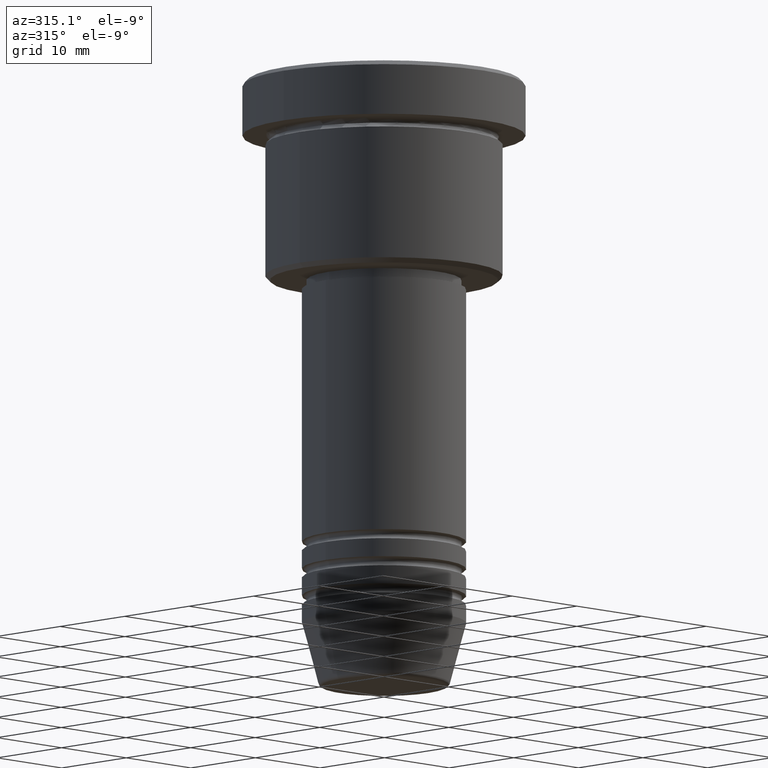
[diagram: clean part render]
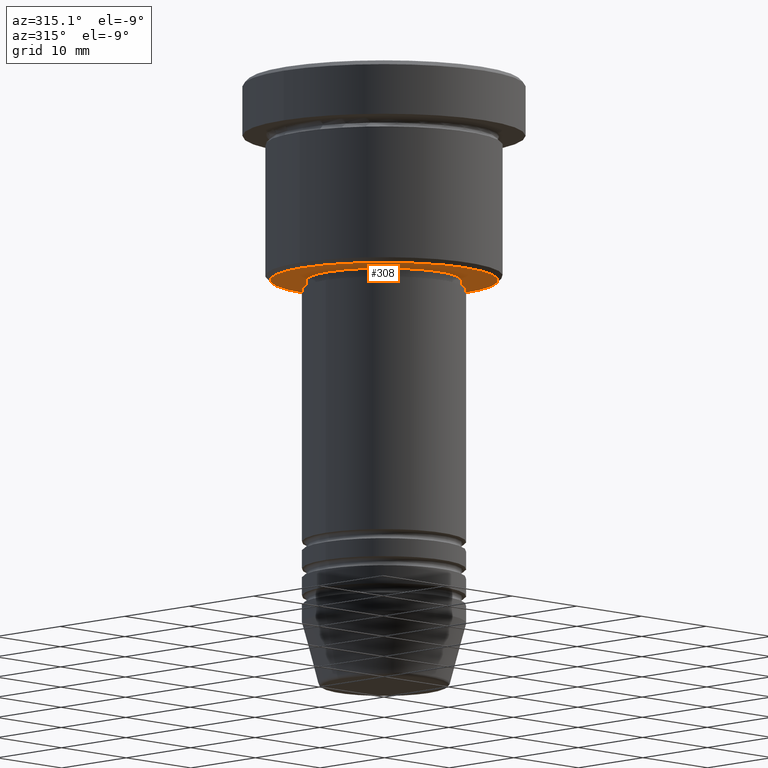
[diagram: same view with one face highlighted and labeled with its STEP entity id]
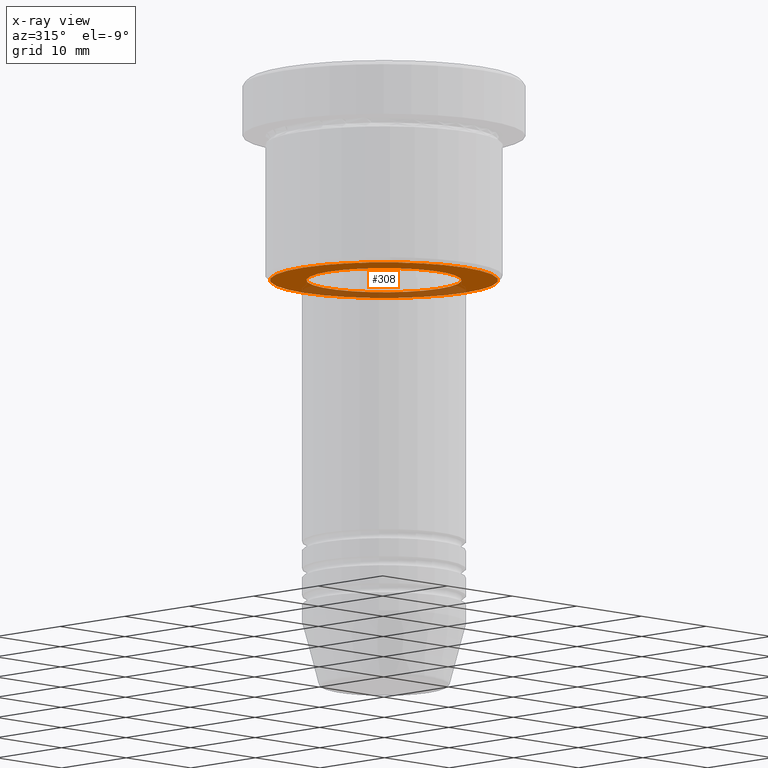
[diagram: x-ray of the same camera — body ghosted, the highlighted face saturated]
A machine part, auxiliary view. The second image highlights one B-rep face of the part: STEP entity #308.
The next image is the same camera in x-ray: the body ghosted, the highlighted face saturated — about 31% of this face is hidden behind the body in this view.
In plain terms, the highlighted planar face has unit normal (0, 0, -1).
Its self-contained STEP definition (entity closure, byte-faithful):
#19 = EDGE_CURVE ( 'NONE', #1027, #1173, #199, .T. ) ;
#20 = DIRECTION ( 'NONE',  ( 0.000000000000000000, 0.000000000000000000, -1.000000000000000000 ) ) ;
#30 = ORIENTED_EDGE ( 'NONE', *, *, #227, .T. ) ;
#33 = CIRCLE ( 'NONE', #332, 12.49999999999999112 ) ;
#81 = CARTESIAN_POINT ( 'NONE',  ( 8.499999999999998224, 0.000000000000000000, -22.00000000000000000 ) ) ;
#101 = PLANE ( 'NONE',  #795 ) ;
#105 = AXIS2_PLACEMENT_3D ( 'NONE', #606, #433, #816 ) ;
#121 = DIRECTION ( 'NONE',  ( 0.000000000000000000, 0.000000000000000000, -1.000000000000000000 ) ) ;
#128 = CIRCLE ( 'NONE', #693, 12.49999999999999112 ) ;
#177 = VERTEX_POINT ( 'NONE', #248 ) ;
#195 = CARTESIAN_POINT ( 'NONE',  ( -12.49999999999999112, 1.561424668912874519E-15, -22.00000000000000000 ) ) ;
#199 = CIRCLE ( 'NONE', #331, 8.499999999999998224 ) ;
#208 = FACE_OUTER_BOUND ( 'NONE', #1022, .T. ) ;
#227 = EDGE_CURVE ( 'NONE', #1173, #1027, #615, .T. ) ;
#247 = DIRECTION ( 'NONE',  ( 0.000000000000000000, 0.000000000000000000, -1.000000000000000000 ) ) ;
#248 = CARTESIAN_POINT ( 'NONE',  ( 12.49999999999999112, 0.000000000000000000, -22.00000000000000000 ) ) ;
#283 = ORIENTED_EDGE ( 'NONE', *, *, #19, .T. ) ;
#308 = ADVANCED_FACE ( 'NONE', ( #208, #749 ), #101, .T. ) ;
#326 = CARTESIAN_POINT ( 'NONE',  ( -8.499999999999998224, 1.040949779275249943E-15, -22.00000000000000000 ) ) ;
#331 = AXIS2_PLACEMENT_3D ( 'NONE', #677, #416, #1123 ) ;
#332 = AXIS2_PLACEMENT_3D ( 'NONE', #398, #121, #1118 ) ;
#383 = ORIENTED_EDGE ( 'NONE', *, *, #468, .T. ) ;
#398 = CARTESIAN_POINT ( 'NONE',  ( 0.000000000000000000, 0.000000000000000000, -22.00000000000000000 ) ) ;
#416 = DIRECTION ( 'NONE',  ( -0.000000000000000000, -0.000000000000000000, 1.000000000000000000 ) ) ;
#433 = DIRECTION ( 'NONE',  ( -0.000000000000000000, -0.000000000000000000, 1.000000000000000000 ) ) ;
#468 = EDGE_CURVE ( 'NONE', #177, #760, #33, .T. ) ;
#606 = CARTESIAN_POINT ( 'NONE',  ( 0.000000000000000000, 0.000000000000000000, -22.00000000000000000 ) ) ;
#615 = CIRCLE ( 'NONE', #105, 8.499999999999998224 ) ;
#661 = CARTESIAN_POINT ( 'NONE',  ( 0.000000000000000000, 13.00000000000000000, -22.00000000000000000 ) ) ;
#667 = EDGE_CURVE ( 'NONE', #760, #177, #128, .T. ) ;
#677 = CARTESIAN_POINT ( 'NONE',  ( 0.000000000000000000, 0.000000000000000000, -22.00000000000000000 ) ) ;
#693 = AXIS2_PLACEMENT_3D ( 'NONE', #889, #247, #1160 ) ;
#749 = FACE_BOUND ( 'NONE', #1007, .T. ) ;
#760 = VERTEX_POINT ( 'NONE', #195 ) ;
#795 = AXIS2_PLACEMENT_3D ( 'NONE', #661, #20, #942 ) ;
#816 = DIRECTION ( 'NONE',  ( 1.000000000000000000, 0.000000000000000000, 0.000000000000000000 ) ) ;
#889 = CARTESIAN_POINT ( 'NONE',  ( 0.000000000000000000, 0.000000000000000000, -22.00000000000000000 ) ) ;
#942 = DIRECTION ( 'NONE',  ( -1.000000000000000000, 0.000000000000000000, -0.000000000000000000 ) ) ;
#1007 = EDGE_LOOP ( 'NONE', ( #283, #30 ) ) ;
#1014 = ORIENTED_EDGE ( 'NONE', *, *, #667, .T. ) ;
#1022 = EDGE_LOOP ( 'NONE', ( #383, #1014 ) ) ;
#1027 = VERTEX_POINT ( 'NONE', #81 ) ;
#1118 = DIRECTION ( 'NONE',  ( -1.000000000000000000, 0.000000000000000000, 0.000000000000000000 ) ) ;
#1123 = DIRECTION ( 'NONE',  ( 1.000000000000000000, 0.000000000000000000, 0.000000000000000000 ) ) ;
#1160 = DIRECTION ( 'NONE',  ( -1.000000000000000000, 0.000000000000000000, 0.000000000000000000 ) ) ;
#1173 = VERTEX_POINT ( 'NONE', #326 ) ;